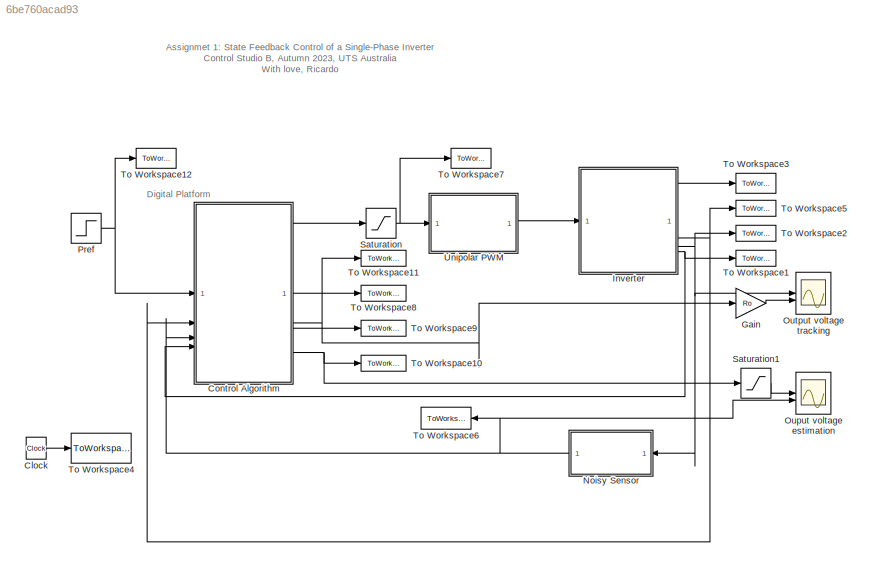
MODEL slx_6be760acad93
KIND model
CONFIG AbsTol = auto
CONFIG EnableMultiTasking = on
CONFIG FixedStep = auto
CONFIG MaxStep = Tstep
CONFIG MinStep = auto
CONFIG RelTol = 1e-3
CONFIG SampleTimeConstraint = Unconstrained
CONFIG SolverName = ode23t
CONFIG StartTime = 0.0
CONFIG StopTime = Tsim
BLOCK [Clock] Clock
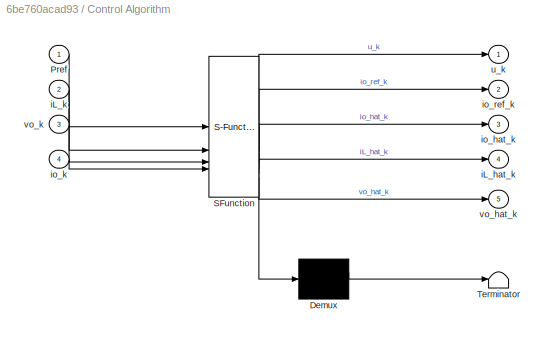
BLOCK [SubSystem] Control Algorithm
  ErrorFcn = Stateflow.Translate.translate
  PermitHierarchicalResolution = ExplicitOnly
  SFBlockType = MATLAB Function
  SystemSampleTime = Ts
  TreatAsAtomicUnit = on
BLOCK [Demux] Control Algorithm/ Demux 
  Outputs = 1
BLOCK [S-Function] Control Algorithm/ SFunction 
  EnableBusSupport = on
  FunctionName = sf_sfun
  Parameters = A,B,CL,Co,F,L,Ro,Ts,Vdc,l,obs
  PortCounts = [4 6]
  SFcnIsStateOwnerBlock = off
  SFunctionDeploymentMode = off
  Tag = Stateflow S-Function 2
BLOCK [Terminator] Control Algorithm/ Terminator 
BLOCK [Inport] Control Algorithm/Pref
BLOCK [Outport] Control Algorithm/iL_hat_k
  Port = 4
BLOCK [Inport] Control Algorithm/iL_k
  Port = 2
BLOCK [Outport] Control Algorithm/io_hat_k
  Port = 3
BLOCK [Inport] Control Algorithm/io_k
  Port = 4
BLOCK [Outport] Control Algorithm/io_ref_k
  Port = 2
BLOCK [Outport] Control Algorithm/u_k
BLOCK [Outport] Control Algorithm/vo_hat_k
  Port = 5
BLOCK [Inport] Control Algorithm/vo_k
  Port = 3
BLOCK [Gain] Gain
  Gain = Ro
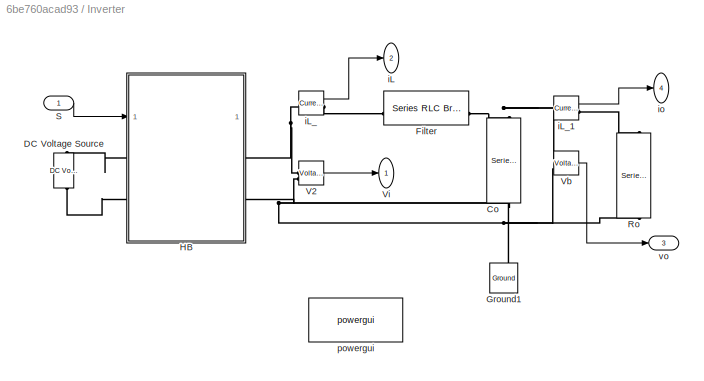
BLOCK [SubSystem] Inverter
BLOCK [Reference] Inverter/Co  REF=spsSeriesRLCBranchLib/Series RLC Branch
  LibrarySourceBlock = sps_lib/Passives/Series RLC Branch
  NameLocation = left
  SourceBlock = spsSeriesRLCBranchLib/Series RLC Branch
  SourceType = Series RLC Branch
BLOCK [Reference] Inverter/DC Voltage Source  REF=spsDCVoltageSourceLib/DC Voltage Source
  LibrarySourceBlock = sps_lib/Sources/DC Voltage Source
  NameLocation = left
  SourceBlock = spsDCVoltageSourceLib/DC Voltage Source
  SourceType = DC Voltage Source
BLOCK [Reference] Inverter/Filter  REF=spsSeriesRLCBranchLib/Series RLC Branch
  LibrarySourceBlock = sps_lib/Passives/Series RLC Branch
  SourceBlock = spsSeriesRLCBranchLib/Series RLC Branch
  SourceType = Series RLC Branch
BLOCK [Reference] Inverter/Ground1  REF=spsGroundLib/Ground
  LibrarySourceBlock = sps_lib/Utilities/Ground
  NameLocation = right
  SourceBlock = spsGroundLib/Ground
  SourceType = Ground
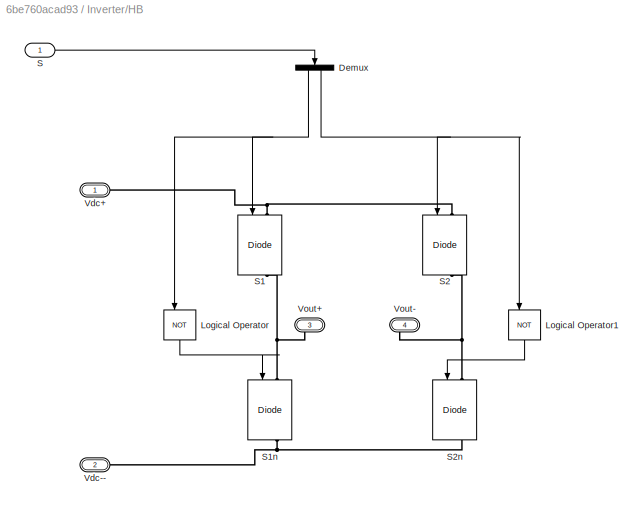
BLOCK [SubSystem] Inverter/HB
BLOCK [Demux] Inverter/HB/Demux
  NameLocation = left
  Outputs = 2
BLOCK [Logic] Inverter/HB/Logical Operator
  AllPortsSameDT = off
  NameLocation = left
  Operator = NOT
  OutDataTypeStr = boolean
BLOCK [Logic] Inverter/HB/Logical Operator1
  AllPortsSameDT = off
  NameLocation = left
  Operator = NOT
  OutDataTypeStr = boolean
BLOCK [Inport] Inverter/HB/S
BLOCK [Reference] Inverter/HB/S1  REF=spsIGBTDiodeLib/IGBT//Diode
  LibrarySourceBlock = sps_lib/Power Electronics/IGBT//Diode
  NameLocation = left
  SourceBlock = spsIGBTDiodeLib/IGBT//Diode
  SourceType = IGBT/Diode
BLOCK [Reference] Inverter/HB/S1n  REF=spsIGBTDiodeLib/IGBT//Diode
  LibrarySourceBlock = sps_lib/Power Electronics/IGBT//Diode
  NameLocation = left
  SourceBlock = spsIGBTDiodeLib/IGBT//Diode
  SourceType = IGBT/Diode
BLOCK [Reference] Inverter/HB/S2  REF=spsIGBTDiodeLib/IGBT//Diode
  LibrarySourceBlock = sps_lib/Power Electronics/IGBT//Diode
  NameLocation = left
  SourceBlock = spsIGBTDiodeLib/IGBT//Diode
  SourceType = IGBT/Diode
BLOCK [Reference] Inverter/HB/S2n  REF=spsIGBTDiodeLib/IGBT//Diode
  LibrarySourceBlock = sps_lib/Power Electronics/IGBT//Diode
  NameLocation = left
  SourceBlock = spsIGBTDiodeLib/IGBT//Diode
  SourceType = IGBT/Diode
BLOCK [PMIOPort] Inverter/HB/Vdc+
  NameLocation = top
  Side = Left
BLOCK [PMIOPort] Inverter/HB/Vdc--
  Port = 2
  Side = Left
BLOCK [PMIOPort] Inverter/HB/Vout+
  NameLocation = top
  Port = 3
  Side = Right
BLOCK [PMIOPort] Inverter/HB/Vout-
  NameLocation = top
  Port = 4
  Side = Right
BLOCK [Reference] Inverter/Ro  REF=spsSeriesRLCBranchLib/Series RLC Branch
  LibrarySourceBlock = sps_lib/Passives/Series RLC Branch
  NameLocation = left
  SourceBlock = spsSeriesRLCBranchLib/Series RLC Branch
  SourceType = Series RLC Branch
BLOCK [Inport] Inverter/S
BLOCK [Reference] Inverter/V2  REF=spsVoltageMeasurementLib/Voltage Measurement
  AttributesFormatString = \n
  LibrarySourceBlock = sps_lib/Sensors and Measurements/Voltage Measurement
  SourceBlock = spsVoltageMeasurementLib/Voltage Measurement
  SourceType = Voltage Measurement
  Tag = PoWeRsYsTeMmEaSuReMeNt
BLOCK [Reference] Inverter/Vb  REF=spsVoltageMeasurementLib/Voltage Measurement
  AttributesFormatString = \n
  LibrarySourceBlock = sps_lib/Sensors and Measurements/Voltage Measurement
  SourceBlock = spsVoltageMeasurementLib/Voltage Measurement
  SourceType = Voltage Measurement
  Tag = PoWeRsYsTeMmEaSuReMeNt
BLOCK [Outport] Inverter/Vi
BLOCK [Outport] Inverter/iL
  Port = 2
BLOCK [Reference] Inverter/iL_  REF=spsCurrentMeasurementLib/Current Measurement
  LibrarySourceBlock = sps_lib/Sensors and Measurements/Current Measurement
  NameLocation = top
  SourceBlock = spsCurrentMeasurementLib/Current Measurement
  SourceType = Current Measurement
  UserDataPersistent = on
BLOCK [Reference] Inverter/iL_1  REF=spsCurrentMeasurementLib/Current Measurement
  LibrarySourceBlock = sps_lib/Sensors and Measurements/Current Measurement
  NameLocation = top
  SourceBlock = spsCurrentMeasurementLib/Current Measurement
  SourceType = Current Measurement
  UserDataPersistent = on
BLOCK [Outport] Inverter/io
  Port = 4
BLOCK [Reference] Inverter/powergui  REF=sps_lib/powergui
  SourceBlock = sps_lib/powergui
  SourceType = PSB option menu block
BLOCK [Outport] Inverter/vo
  Port = 3
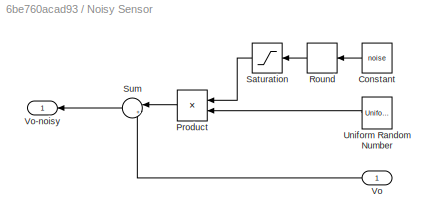
BLOCK [SubSystem] Noisy Sensor
BLOCK [Constant] Noisy Sensor/Constant
  NameLocation = top
  Value = noise
BLOCK [Product] Noisy Sensor/Product
  NameLocation = top
BLOCK [Rounding] Noisy Sensor/Round
  NameLocation = top
  Operator = round
BLOCK [Saturate] Noisy Sensor/Saturation
  LowerLimit = 0
  NameLocation = top
  UpperLimit = 1
BLOCK [Sum] Noisy Sensor/Sum
  Inputs = |++
BLOCK [UniformRandomNumber] Noisy Sensor/Uniform Random Number
  SampleTime = Tstep
  Seed = 1
BLOCK [Inport] Noisy Sensor/Vo
BLOCK [Outport] Noisy Sensor/Vo-noisy
BLOCK [Scope] Ouput voltage estimation
  Floating = off
  NumInputPorts = 2
  ScopeSpecificationString = Simulink.scopes.TimeScopeBlockCfg('CurrentConfiguration', extmgr.ConfigurationSet(extmgr.Configuration('Core','General UI',true),extmgr.Configuration('Core','Source UI',true),extmgr.Configuration('Sources','WiredSimulink',true,'DataLogging',true,'DataLoggingVariableName','ScopeData6'),extmgr.Configuration('Visuals','Time Domain',true,'SerializedDisplays',{struct('MinYLimReal','-35.17993','MaxYLimR...<+1559ch>
BLOCK [Scope] Output voltage tracking
  Floating = off
  NumInputPorts = 2
  ScopeSpecificationString = Simulink.scopes.TimeScopeBlockCfg('CurrentConfiguration', extmgr.ConfigurationSet(extmgr.Configuration('Core','General UI',true),extmgr.Configuration('Core','Source UI',true),extmgr.Configuration('Sources','WiredSimulink',true,'DataLogging',true,'DataLoggingVariableName','Currents'),extmgr.Configuration('Visuals','Time Domain',true,'SerializedDisplays',{struct('MinYLimReal','-12.50487','MaxYLimRea...<+1551ch>
BLOCK [Step] Pref
  After = 500
  Before = 125
  SampleTime = 0
  Time = 0.04
BLOCK [Saturate] Saturation
  LowerLimit = -1
  UpperLimit = 1
BLOCK [Saturate] Saturation1
  LowerLimit = -80
  UpperLimit = 80
BLOCK [ToWorkspace] To Workspace1
  FixptAsFi = on
  MaxDataPoints = inf
  SampleTime = Tstep
  VariableName = io
BLOCK [ToWorkspace] To Workspace10
  FixptAsFi = on
  MaxDataPoints = inf
  SampleTime = Tstep
  VariableName = vo_hat
BLOCK [ToWorkspace] To Workspace11
  FixptAsFi = on
  MaxDataPoints = inf
  SampleTime = Tstep
  VariableName = io_ref
BLOCK [ToWorkspace] To Workspace12
  FixptAsFi = on
  MaxDataPoints = inf
  SampleTime = Tstep
  VariableName = Pref
BLOCK [ToWorkspace] To Workspace2
  FixptAsFi = on
  MaxDataPoints = inf
  SampleTime = Tstep
  VariableName = vo
BLOCK [ToWorkspace] To Workspace3
  FixptAsFi = on
  MaxDataPoints = inf
  SampleTime = Tstep
  VariableName = vi
BLOCK [ToWorkspace] To Workspace4
  FixptAsFi = on
  MaxDataPoints = inf
  SampleTime = Tstep
  VariableName = time
BLOCK [ToWorkspace] To Workspace5
  FixptAsFi = on
  MaxDataPoints = inf
  SampleTime = Tstep
  VariableName = iL
BLOCK [ToWorkspace] To Workspace6
  FixptAsFi = on
  MaxDataPoints = inf
  SampleTime = Tstep
  VariableName = vo_noisy
BLOCK [ToWorkspace] To Workspace7
  FixptAsFi = on
  MaxDataPoints = inf
  SampleTime = Tstep
  VariableName = d
BLOCK [ToWorkspace] To Workspace8
  FixptAsFi = on
  MaxDataPoints = inf
  SampleTime = Tstep
  VariableName = io_hat
BLOCK [ToWorkspace] To Workspace9
  FixptAsFi = on
  MaxDataPoints = inf
  SampleTime = Tstep
  VariableName = iL_hat
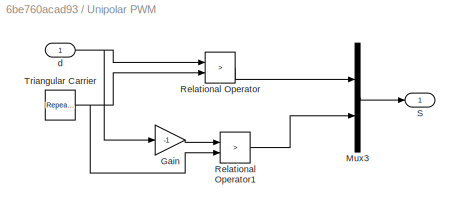
BLOCK [SubSystem] Unipolar PWM
BLOCK [Gain] Unipolar PWM/Gain
  Gain = -1
BLOCK [Mux] Unipolar PWM/Mux3
  DisplayOption = bar
  Inputs = 2
BLOCK [RelationalOperator] Unipolar PWM/Relational Operator
  Operator = >
  OutDataTypeStr = boolean
  RndMeth = Simplest
BLOCK [RelationalOperator] Unipolar PWM/Relational Operator1
  Operator = >
  OutDataTypeStr = boolean
  RndMeth = Simplest
BLOCK [Outport] Unipolar PWM/S
BLOCK [Reference] Unipolar PWM/Triangular Carrier  REF=simulink/Sources/Repeating
Sequence
  SourceBlock = simulink/Sources/Repeating\nSequence
  SourceType = Repeating table
BLOCK [Inport] Unipolar PWM/d
ANNOTATION (root): Assignmet 1: State Feedback Control of a Single-Phase Inverter Control Studio B, Autumn 2023, UTS Australia With love, Ricardo
ANNOTATION (root): Digital Platform
LINE Clock:1 -> To Workspace4:1
LINE Control Algorithm:1 -> Saturation:1
NET Control Algorithm:2 -> Gain:1, To Workspace11:1
LINE Control Algorithm:3 -> To Workspace8:1
LINE Control Algorithm:4 -> To Workspace9:1
NET Control Algorithm:5 -> Saturation1:1, To Workspace10:1
LINE Gain:1 -> Output voltage tracking:2
NET Inverter/HB/Demux:1 -> Inverter/HB/Logical Operator:1, Inverter/HB/S1:1
NET Inverter/HB/Demux:2 -> Inverter/HB/Logical Operator1:1, Inverter/HB/S2:1
LINE Inverter/HB/Logical Operator1:1 -> Inverter/HB/S2n:1
LINE Inverter/HB/Logical Operator:1 -> Inverter/HB/S1n:1
LINE Inverter/HB/S:1 -> Inverter/HB/Demux:1
LINE Inverter/S:1 -> Inverter/HB:1
LINE Inverter/V2:1 -> Inverter/Vi:1
LINE Inverter/Vb:1 -> Inverter/vo:1
LINE Inverter/iL_1:1 -> Inverter/io:1
LINE Inverter/iL_:1 -> Inverter/iL:1
LINE Inverter:1 -> To Workspace3:1
NET Inverter:2 -> Control Algorithm:2, To Workspace5:1
NET Inverter:3 -> Noisy Sensor:1, Output voltage tracking:1, To Workspace2:1
NET Inverter:4 -> Control Algorithm:4, To Workspace1:1
LINE Noisy Sensor/Constant:1 -> Noisy Sensor/Round:1
LINE Noisy Sensor/Product:1 -> Noisy Sensor/Sum:1
LINE Noisy Sensor/Round:1 -> Noisy Sensor/Saturation:1
LINE Noisy Sensor/Saturation:1 -> Noisy Sensor/Product:1
LINE Noisy Sensor/Sum:1 -> Noisy Sensor/Vo-noisy:1
LINE Noisy Sensor/Uniform Random Number:1 -> Noisy Sensor/Product:2
LINE Noisy Sensor/Vo:1 -> Noisy Sensor/Sum:2
NET Noisy Sensor:1 -> Control Algorithm:3, Ouput voltage estimation:2, To Workspace6:1
NET Pref:1 -> Control Algorithm:1, To Workspace12:1
LINE Saturation1:1 -> Ouput voltage estimation:1
NET Saturation:1 -> To Workspace7:1, Unipolar PWM:1
LINE Unipolar PWM/Gain:1 -> Unipolar PWM/Relational Operator1:1
LINE Unipolar PWM/Mux3:1 -> Unipolar PWM/S:1
LINE Unipolar PWM/Relational Operator1:1 -> Unipolar PWM/Mux3:2
LINE Unipolar PWM/Relational Operator:1 -> Unipolar PWM/Mux3:1
NET Unipolar PWM/Triangular Carrier:1 -> Unipolar PWM/Relational Operator1:2, Unipolar PWM/Relational Operator:2
NET Unipolar PWM/d:1 -> Unipolar PWM/Gain:1, Unipolar PWM/Relational Operator:1
LINE Unipolar PWM:1 -> Inverter:1
PNET net1: Inverter/Co:LConn1 -- Inverter/Filter:RConn1 -- Inverter/Vb:LConn1 -- Inverter/iL_1:LConn1
PNET net2: Inverter/Co:RConn1 -- Inverter/Ground1:LConn1 -- Inverter/HB:RConn2 -- Inverter/Ro:RConn1 -- Inverter/V2:LConn2 -- Inverter/Vb:LConn2
PLINE Inverter/DC Voltage Source:LConn1 -- Inverter/HB:LConn2
PLINE Inverter/DC Voltage Source:RConn1 -- Inverter/HB:LConn1
PLINE Inverter/Filter:LConn1 -- Inverter/iL_:RConn1
PNET net3: Inverter/HB/S1:LConn1 -- Inverter/HB/S2:LConn1 -- Inverter/HB/Vdc+:RConn1
PNET net4: Inverter/HB/S1:RConn1 -- Inverter/HB/S1n:LConn1 -- Inverter/HB/Vout+:RConn1
PNET net5: Inverter/HB/S1n:RConn1 -- Inverter/HB/S2n:RConn1 -- Inverter/HB/Vdc--:RConn1
PNET net6: Inverter/HB/S2:RConn1 -- Inverter/HB/S2n:LConn1 -- Inverter/HB/Vout-:RConn1
PNET net7: Inverter/HB:RConn1 -- Inverter/V2:LConn1 -- Inverter/iL_:LConn1
PLINE Inverter/Ro:LConn1 -- Inverter/iL_1:RConn1
note: NET lines group one-source signal fan-out (src -> all destinations, sorted); 1:1 wires keep LINE; PNET lines group multi-terminal physical nets as a canonical sorted terminal list (undirected conserving connections); 2-terminal nets keep the pairwise PLINE form
CHART Control Algorithm states=1 transitions=1
  STATE_LABEL 'eML_blk_kernel()'
  STATE_LABEL 'SCRIPT:\n%% This function will provide the control action to be applied to system.\n%  Also, this function will provide the instantaneous current reference\n%  and the state estimates from the observer\n\n% ***Check the script for possible Easter Eggs!!!\n%%\nfunction [u_k,io_ref_k,io_hat_k,iL_hat_k,vo_hat_k] = Controller(Pref,iL_k, vo_k, io_k, F, Ts, obs, CL, l, Vdc, Ro, Co, A, B, L)\n%% Memory\npersisten...<+1870ch>'
CHART  states=0 transitions=0
